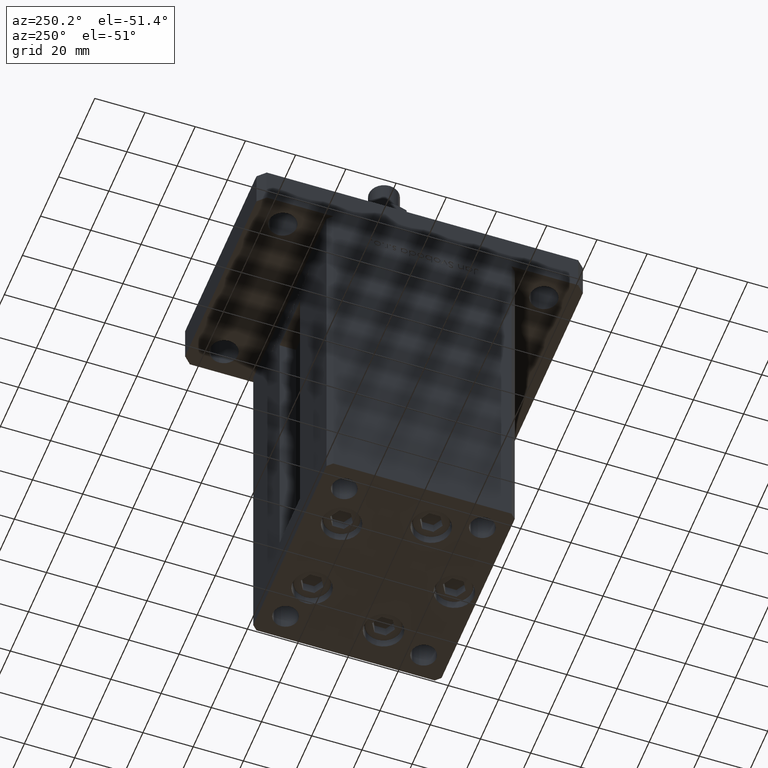
[diagram: clean part render]
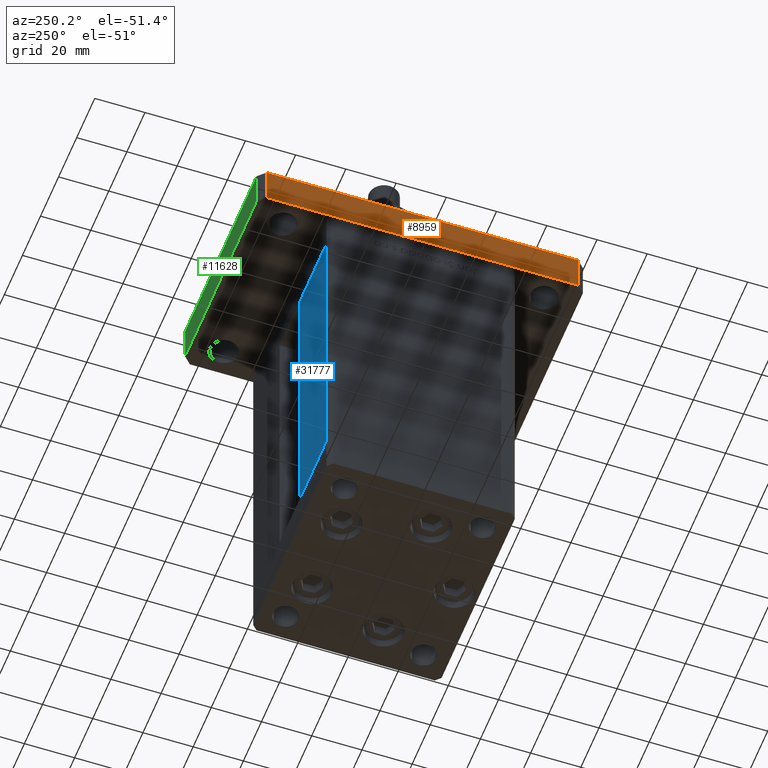
[diagram: same view with three faces highlighted in distinct colors, each labeled with its STEP entity id]
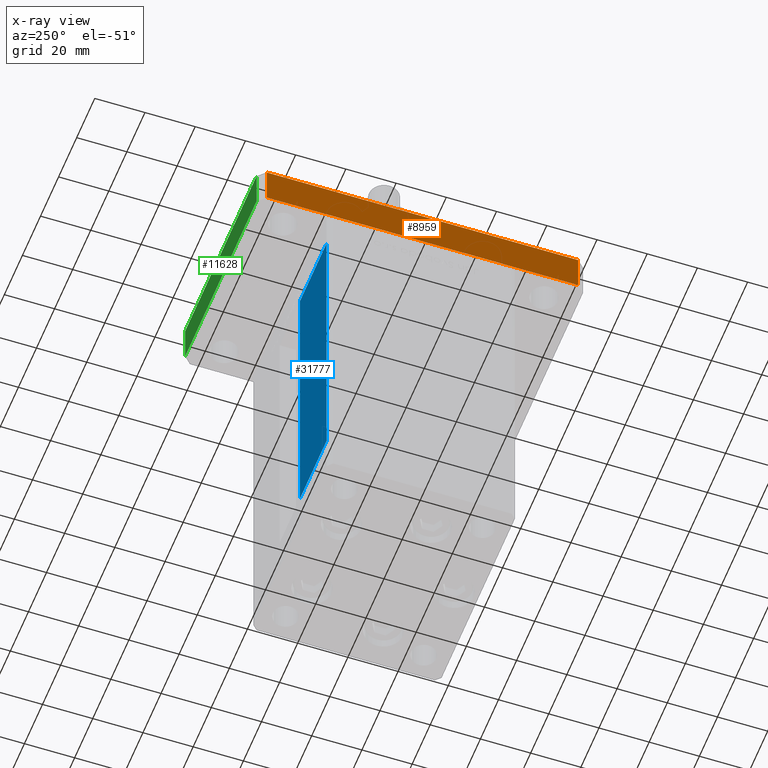
[diagram: x-ray of the same camera — body ghosted, the three highlighted faces saturated]
A machine part, auxiliary view with three faces highlighted in distinct colors.
The next image is the same camera in x-ray (body ghosted, the three faces saturated) — at least one of them is partly hidden behind the body in this view.
Their STEP definitions:

[orange] entity #8959 — the highlighted planar face has unit normal (1, 0, 0).
#2440 = DIRECTION ( 'NONE',  ( -0.000000000000000000, -0.000000000000000000, -1.000000000000000000 ) ) ;
#3488 = CARTESIAN_POINT ( 'NONE',  ( -42.50000000000002132, 62.00000000000000711, 15.00000000000000000 ) ) ;
#5323 = VERTEX_POINT ( 'NONE', #14360 ) ;
#5395 = LINE ( 'NONE', #40012, #14429 ) ;
#5790 = PLANE ( 'NONE',  #35250 ) ;
#8959 = ADVANCED_FACE ( 'NONE', ( #39577 ), #5790, .F. ) ;
#10728 = ORIENTED_EDGE ( 'NONE', *, *, #27051, .F. ) ;
#13619 = DIRECTION ( 'NONE',  ( 1.000000000000000000, 2.238352872228137677E-16, -0.000000000000000000 ) ) ;
#14327 = DIRECTION ( 'NONE',  ( 2.238352872228137677E-16, -1.000000000000000000, 0.000000000000000000 ) ) ;
#14360 = CARTESIAN_POINT ( 'NONE',  ( -42.49999999999999289, -62.00000000000001421, 15.00000000000000000 ) ) ;
#14429 = VECTOR ( 'NONE', #14327, 1000.000000000000000 ) ;
#15531 = ORIENTED_EDGE ( 'NONE', *, *, #51249, .T. ) ;
#16134 = VERTEX_POINT ( 'NONE', #53249 ) ;
#22575 = VECTOR ( 'NONE', #32281, 1000.000000000000000 ) ;
#23635 = LINE ( 'NONE', #3488, #22575 ) ;
#23905 = VERTEX_POINT ( 'NONE', #47122 ) ;
#24248 = DIRECTION ( 'NONE',  ( 2.238352872228137677E-16, -1.000000000000000000, 0.000000000000000000 ) ) ;
#26678 = EDGE_LOOP ( 'NONE', ( #29763, #10728, #48001, #15531 ) ) ;
#27051 = EDGE_CURVE ( 'NONE', #5323, #34693, #31779, .T. ) ;
#29763 = ORIENTED_EDGE ( 'NONE', *, *, #50977, .T. ) ;
#31779 = LINE ( 'NONE', #36500, #45510 ) ;
#32281 = DIRECTION ( 'NONE',  ( -0.000000000000000000, -0.000000000000000000, -1.000000000000000000 ) ) ;
#32381 = VECTOR ( 'NONE', #24248, 1000.000000000000000 ) ;
#34511 = EDGE_CURVE ( 'NONE', #16134, #5323, #5395, .T. ) ;
#34693 = VERTEX_POINT ( 'NONE', #40428 ) ;
#35250 = AXIS2_PLACEMENT_3D ( 'NONE', #39027, #13619, #52424 ) ;
#36500 = CARTESIAN_POINT ( 'NONE',  ( -42.49999999999999289, -62.00000000000001421, 15.00000000000000000 ) ) ;
#39027 = CARTESIAN_POINT ( 'NONE',  ( -42.50000000000002132, 62.00000000000000711, 15.00000000000000000 ) ) ;
#39577 = FACE_OUTER_BOUND ( 'NONE', #26678, .T. ) ;
#40012 = CARTESIAN_POINT ( 'NONE',  ( -42.50000000000002132, 62.00000000000000711, 15.00000000000000000 ) ) ;
#40428 = CARTESIAN_POINT ( 'NONE',  ( -42.49999999999999289, -62.00000000000001421, 0.000000000000000000 ) ) ;
#40979 = LINE ( 'NONE', #45451, #32381 ) ;
#45451 = CARTESIAN_POINT ( 'NONE',  ( -42.50000000000002132, 62.00000000000000711, 0.000000000000000000 ) ) ;
#45510 = VECTOR ( 'NONE', #2440, 1000.000000000000000 ) ;
#47122 = CARTESIAN_POINT ( 'NONE',  ( -42.50000000000002132, 62.00000000000000711, 0.000000000000000000 ) ) ;
#48001 = ORIENTED_EDGE ( 'NONE', *, *, #34511, .F. ) ;
#50977 = EDGE_CURVE ( 'NONE', #23905, #34693, #40979, .T. ) ;
#51249 = EDGE_CURVE ( 'NONE', #16134, #23905, #23635, .T. ) ;
#52424 = DIRECTION ( 'NONE',  ( -2.238352872228137677E-16, 1.000000000000000000, 0.000000000000000000 ) ) ;
#53249 = CARTESIAN_POINT ( 'NONE',  ( -42.50000000000002132, 62.00000000000000711, 15.00000000000000000 ) ) ;

[blue] entity #31777 — the highlighted planar face has unit normal (-0, -1, 0).
#1566 = FACE_OUTER_BOUND ( 'NONE', #11192, .T. ) ;
#2698 = AXIS2_PLACEMENT_3D ( 'NONE', #5200, #48187, #26158 ) ;
#3383 = VECTOR ( 'NONE', #40984, 1000.000000000000000 ) ;
#3650 = CARTESIAN_POINT ( 'NONE',  ( -11.25000000000000000, 37.50000000000000000, 0.000000000000000000 ) ) ;
#4610 = CARTESIAN_POINT ( 'NONE',  ( -11.25000000000000000, 37.50000000000000000, 118.5000000000000000 ) ) ;
#4743 = CARTESIAN_POINT ( 'NONE',  ( -40.50000000000000000, 37.50000000000000711, 118.5000000000000000 ) ) ;
#5200 = CARTESIAN_POINT ( 'NONE',  ( -11.25000000000000000, 37.50000000000000000, 118.5000000000000000 ) ) ;
#7279 = VERTEX_POINT ( 'NONE', #3650 ) ;
#8000 = LINE ( 'NONE', #51547, #44785 ) ;
#9258 = EDGE_CURVE ( 'NONE', #43325, #55134, #33384, .T. ) ;
#9520 = ORIENTED_EDGE ( 'NONE', *, *, #13975, .F. ) ;
#11130 = LINE ( 'NONE', #53294, #3383 ) ;
#11192 = EDGE_LOOP ( 'NONE', ( #51422, #14376, #27507, #9520 ) ) ;
#12439 = DIRECTION ( 'NONE',  ( 1.000000000000000000, 0.000000000000000000, 0.000000000000000000 ) ) ;
#13975 = EDGE_CURVE ( 'NONE', #43325, #28086, #42447, .T. ) ;
#14376 = ORIENTED_EDGE ( 'NONE', *, *, #22007, .F. ) ;
#14411 = PLANE ( 'NONE',  #2698 ) ;
#19342 = VECTOR ( 'NONE', #30449, 1000.000000000000000 ) ;
#20242 = CARTESIAN_POINT ( 'NONE',  ( -40.50000000000000000, 37.50000000000000711, 0.000000000000000000 ) ) ;
#22007 = EDGE_CURVE ( 'NONE', #7279, #55134, #11130, .T. ) ;
#26158 = DIRECTION ( 'NONE',  ( 1.000000000000000000, -2.372271420139223331E-16, 0.000000000000000000 ) ) ;
#27507 = ORIENTED_EDGE ( 'NONE', *, *, #44434, .T. ) ;
#28086 = VERTEX_POINT ( 'NONE', #20242 ) ;
#30449 = DIRECTION ( 'NONE',  ( -0.000000000000000000, -0.000000000000000000, -1.000000000000000000 ) ) ;
#31777 = ADVANCED_FACE ( 'NONE', ( #1566 ), #14411, .F. ) ;
#33384 = LINE ( 'NONE', #4610, #53939 ) ;
#40984 = DIRECTION ( 'NONE',  ( -0.000000000000000000, -0.000000000000000000, 1.000000000000000000 ) ) ;
#41966 = CARTESIAN_POINT ( 'NONE',  ( -40.50000000000000000, 37.50000000000000711, 118.5000000000000000 ) ) ;
#42447 = LINE ( 'NONE', #4743, #19342 ) ;
#43325 = VERTEX_POINT ( 'NONE', #41966 ) ;
#44434 = EDGE_CURVE ( 'NONE', #7279, #28086, #8000, .T. ) ;
#44785 = VECTOR ( 'NONE', #46515, 1000.000000000000000 ) ;
#45684 = CARTESIAN_POINT ( 'NONE',  ( -11.25000000000000000, 37.50000000000000000, 118.5000000000000000 ) ) ;
#46515 = DIRECTION ( 'NONE',  ( -1.000000000000000000, 2.372271420139223331E-16, 0.000000000000000000 ) ) ;
#48187 = DIRECTION ( 'NONE',  ( -2.372271420139223331E-16, -1.000000000000000000, 0.000000000000000000 ) ) ;
#51422 = ORIENTED_EDGE ( 'NONE', *, *, #9258, .T. ) ;
#51547 = CARTESIAN_POINT ( 'NONE',  ( -11.25000000000000000, 37.50000000000000000, 0.000000000000000000 ) ) ;
#53294 = CARTESIAN_POINT ( 'NONE',  ( -11.25000000000000000, 37.50000000000000000, 0.000000000000000000 ) ) ;
#53939 = VECTOR ( 'NONE', #12439, 1000.000000000000000 ) ;
#55134 = VERTEX_POINT ( 'NONE', #45684 ) ;

[green] entity #11628 — the highlighted planar face has unit normal (0, -1, 0).
#763 = VERTEX_POINT ( 'NONE', #38520 ) ;
#2382 = LINE ( 'NONE', #49000, #3750 ) ;
#3750 = VECTOR ( 'NONE', #23613, 1000.000000000000000 ) ;
#5075 = CARTESIAN_POINT ( 'NONE',  ( -39.50000000000003553, 65.00000000000000000, 15.00000000000000000 ) ) ;
#5623 = CARTESIAN_POINT ( 'NONE',  ( 39.50000000000002842, 65.00000000000002842, 15.00000000000000000 ) ) ;
#9660 = DIRECTION ( 'NONE',  ( -1.000000000000000000, -3.513364001978340512E-16, 0.000000000000000000 ) ) ;
#11628 = ADVANCED_FACE ( 'NONE', ( #38351 ), #37811, .F. ) ;
#12127 = AXIS2_PLACEMENT_3D ( 'NONE', #54564, #16584, #16299 ) ;
#14104 = CARTESIAN_POINT ( 'NONE',  ( -39.50000000000003553, 65.00000000000000000, 15.00000000000000000 ) ) ;
#16299 = DIRECTION ( 'NONE',  ( 1.000000000000000000, 3.513364001978341005E-16, 0.000000000000000000 ) ) ;
#16584 = DIRECTION ( 'NONE',  ( 3.513364001978341005E-16, -1.000000000000000000, 0.000000000000000000 ) ) ;
#17768 = CARTESIAN_POINT ( 'NONE',  ( 39.50000000000002842, 65.00000000000002842, 0.000000000000000000 ) ) ;
#18034 = LINE ( 'NONE', #26434, #41280 ) ;
#19383 = LINE ( 'NONE', #14104, #46509 ) ;
#19708 = VERTEX_POINT ( 'NONE', #17768 ) ;
#22874 = CARTESIAN_POINT ( 'NONE',  ( 39.50000000000002842, 65.00000000000002842, 15.00000000000000000 ) ) ;
#23032 = DIRECTION ( 'NONE',  ( -0.000000000000000000, -0.000000000000000000, -1.000000000000000000 ) ) ;
#23613 = DIRECTION ( 'NONE',  ( -1.000000000000000000, -3.513364001978340512E-16, 0.000000000000000000 ) ) ;
#26434 = CARTESIAN_POINT ( 'NONE',  ( 39.50000000000002842, 65.00000000000002842, 15.00000000000000000 ) ) ;
#26741 = ORIENTED_EDGE ( 'NONE', *, *, #28621, .T. ) ;
#28621 = EDGE_CURVE ( 'NONE', #53187, #19708, #47223, .T. ) ;
#30416 = VECTOR ( 'NONE', #38866, 1000.000000000000000 ) ;
#37811 = PLANE ( 'NONE',  #12127 ) ;
#38351 = FACE_OUTER_BOUND ( 'NONE', #43598, .T. ) ;
#38520 = CARTESIAN_POINT ( 'NONE',  ( -39.50000000000003553, 65.00000000000000000, 0.000000000000000000 ) ) ;
#38866 = DIRECTION ( 'NONE',  ( -0.000000000000000000, -0.000000000000000000, -1.000000000000000000 ) ) ;
#39350 = EDGE_CURVE ( 'NONE', #53187, #46206, #18034, .T. ) ;
#40088 = ORIENTED_EDGE ( 'NONE', *, *, #39350, .F. ) ;
#41280 = VECTOR ( 'NONE', #9660, 1000.000000000000000 ) ;
#42374 = ORIENTED_EDGE ( 'NONE', *, *, #48251, .F. ) ;
#43598 = EDGE_LOOP ( 'NONE', ( #44641, #42374, #40088, #26741 ) ) ;
#44641 = ORIENTED_EDGE ( 'NONE', *, *, #44756, .T. ) ;
#44756 = EDGE_CURVE ( 'NONE', #19708, #763, #2382, .T. ) ;
#46206 = VERTEX_POINT ( 'NONE', #5075 ) ;
#46509 = VECTOR ( 'NONE', #23032, 1000.000000000000000 ) ;
#47223 = LINE ( 'NONE', #5623, #30416 ) ;
#48251 = EDGE_CURVE ( 'NONE', #46206, #763, #19383, .T. ) ;
#49000 = CARTESIAN_POINT ( 'NONE',  ( 39.50000000000002842, 65.00000000000002842, 0.000000000000000000 ) ) ;
#53187 = VERTEX_POINT ( 'NONE', #22874 ) ;
#54564 = CARTESIAN_POINT ( 'NONE',  ( 39.50000000000002842, 65.00000000000002842, 15.00000000000000000 ) ) ;